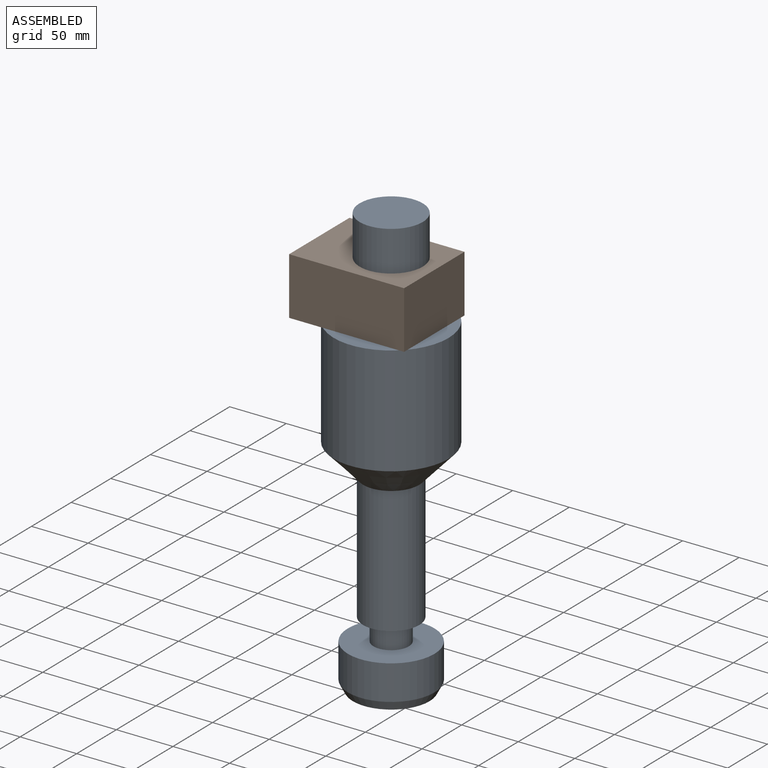
[diagram: assembled view]
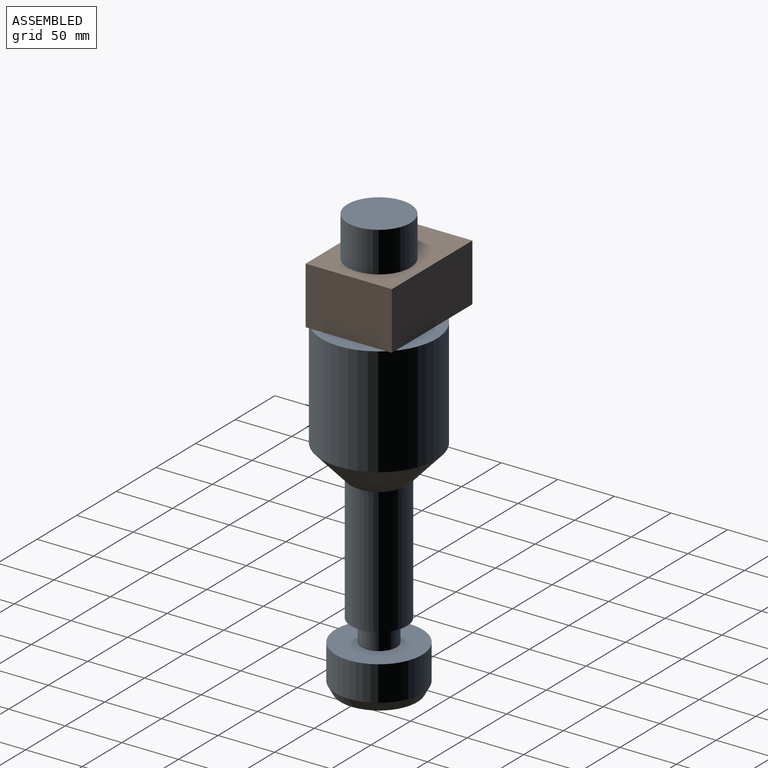
[diagram: assembled view, second angle]
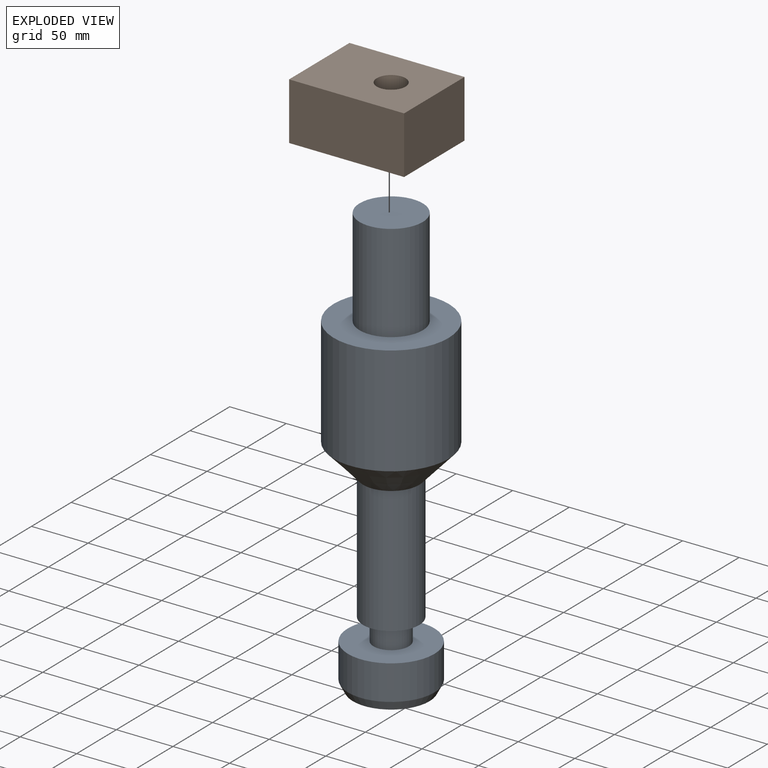
[diagram: exploded view]
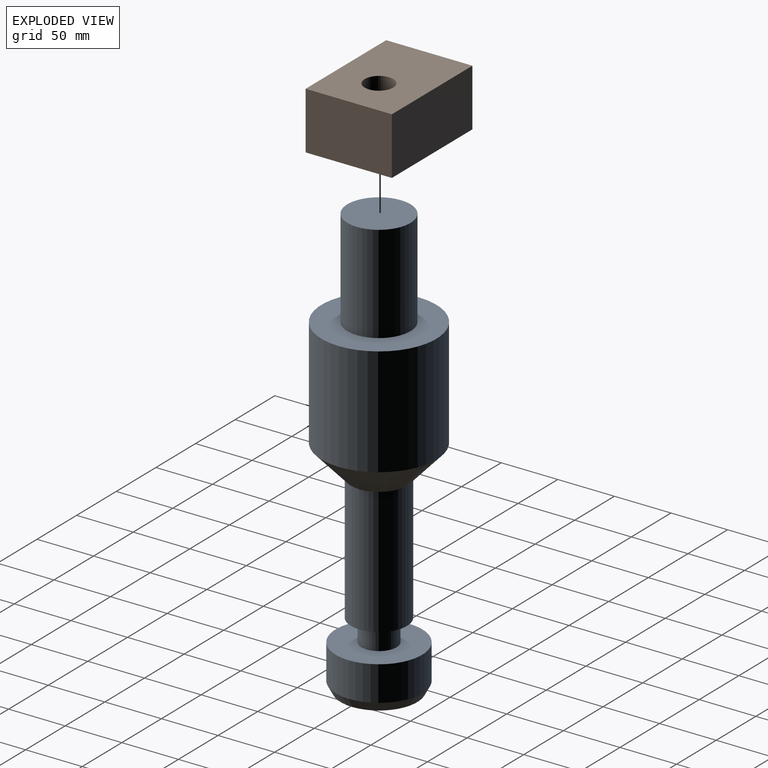
[diagram: exploded view, second angle]
ASSEMBLY  parts=2 mates=2
PART A: 12 faces, bbox 101.6x101.6x381 mm
  f0: plane 55.84x55.84mm, normal (0,0,-1), area 2448.5mm2, adj f2
  f1: plane 101.6x101.6mm, normal (0,0,-1), area 5658.8mm2, adj f2,f3
  f2: cylinder r=27.92mm len=86.42mm, axis (0,0,1), area 15158.6mm2, adj f0,f1
  f3: cylinder r=50.8mm len=101.6mm, axis (0,0,-1), area 30791.2mm2, adj f1,f10
  f4: cylinder r=24.84mm len=111.92mm, axis (0,0,1), area 17466mm2, adj f5,f10
  f5: plane 49.67x49.67mm, normal (0,0,1), area 1173.9mm2, adj f4,f6
  f6: cylinder r=15.6mm len=31.19mm, axis (0,0,1), area 1911.8mm2, adj f5,f7
  f7: plane 76.37x76.37mm, normal (0,0,-1), area 3816.7mm2, adj f6,f8
  f8: cylinder r=38.19mm len=76.37mm, axis (0,0,1), area 7390.7mm2, adj f7,f9
  f9: cone r=38.19mm half-angle=28deg, axis (0,0,-1), area 2078.5mm2, adj f8,f11
  f10: cone r=68.99mm half-angle=43.1deg, axis (0,0,-1), area 9034.2mm2, adj f3,f4
  f11: plane 67.76x67.76mm, normal (0,0,1), area 3605.7mm2, adj f9
PART B: 7 faces, bbox 101.6x50.8x76.2 mm
  f0: plane 76.2x50.8mm, normal (-1,0,0), area 3871mm2, adj f1,f3,f4,f5
  f1: plane 101.6x76.2mm, normal (0,-1,0), area 7235.2mm2, adj f0,f2,f4,f5,f6
  f2: plane 76.2x50.8mm, normal (1,0,0), area 3871mm2, adj f1,f3,f4,f5
  f3: plane 101.6x76.2mm, normal (0,1,0), area 7235.2mm2, adj f0,f2,f4,f5,f6
  f4: plane 101.6x50.8mm, normal (0,0,1), area 5161.3mm2, adj f0,f1,f2,f3
  f5: plane 101.6x50.8mm, normal (0,0,-1), area 5161.3mm2, adj f0,f1,f2,f3
  f6: cylinder r=12.7mm len=50.8mm, axis (0,1,0), area 4053.7mm2, adj f1,f3
PLACE A rot(axis=(1,0,0),180deg) t=(-68.61,-40.87,-9.19)mm
PLACE B rot(axis=(1,0,0),90deg) t=(-132.11,-40.87,-95.61)mm
MATE cylindrical A.f2 <-> B.f6  axis (0,0,-1) through (-68.61,-40.87,-52.4)mm
MATE planar A.f3 <-> B.f1  axis (0,0,1) through (-68.61,-40.87,-95.61)mm
